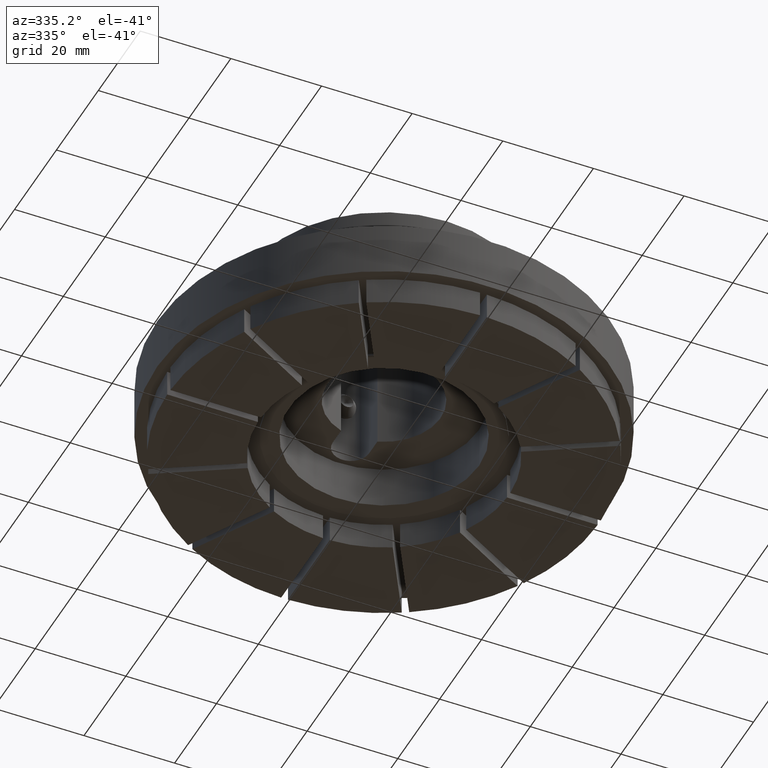
[diagram: clean part render]
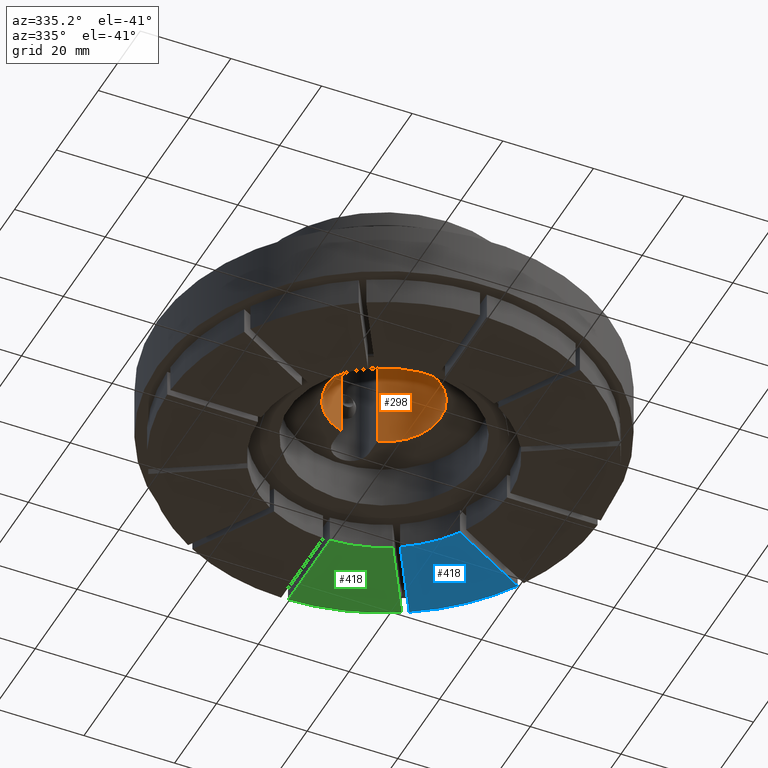
[diagram: same view with three faces highlighted in distinct colors, each labeled with its STEP entity id]
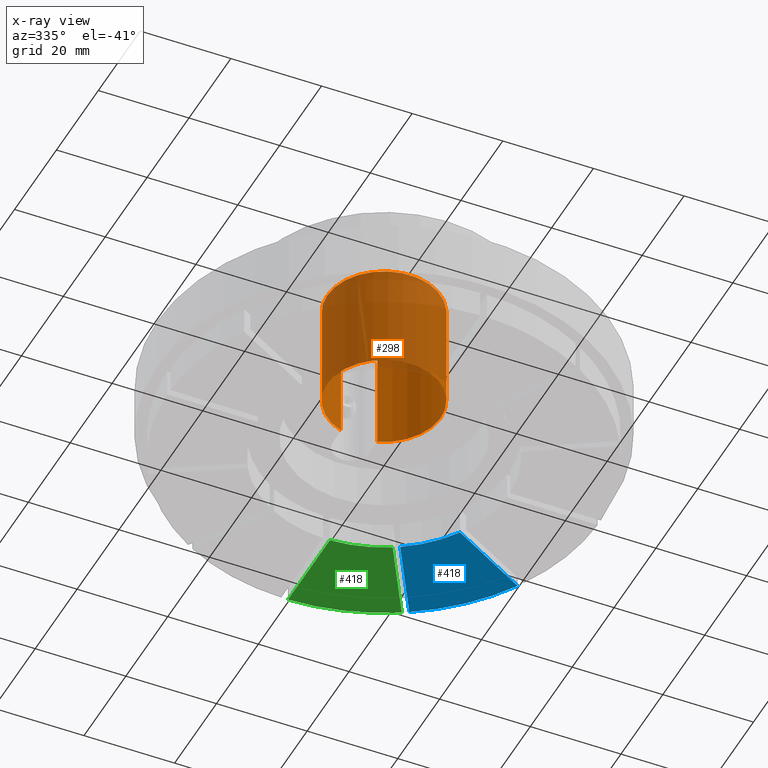
[diagram: x-ray of the same camera — body ghosted, the three highlighted faces saturated]
A machine part, auxiliary view with three faces highlighted in distinct colors.
The next image is the same camera in x-ray (body ghosted, the three faces saturated) — at least one of them is partly hidden behind the body in this view.
Their STEP definitions:

[orange] entity #298 — the highlighted cylindrical surface (partial cylindrical patch) has radius 12.5 mm, axis along (0, -0, 1).
#298 = ADVANCED_FACE( '', ( #425 ), #426, .F. );
#425 = FACE_OUTER_BOUND( '', #637, .T. );
#426 = CYLINDRICAL_SURFACE( '', #638, 12.5000000000000 );
#637 = EDGE_LOOP( '', ( #856, #857, #858, #859 ) );
#638 = AXIS2_PLACEMENT_3D( '', #860, #861, #862 );
#856 = ORIENTED_EDGE( '', *, *, #1515, .F. );
#857 = ORIENTED_EDGE( '', *, *, #1514, .T. );
#858 = ORIENTED_EDGE( '', *, *, #1516, .T. );
#859 = ORIENTED_EDGE( '', *, *, #1517, .F. );
#860 = CARTESIAN_POINT( '', ( 0.000000000000000, 0.000000000000000, 39.0000100000000 ) );
#861 = DIRECTION( '', ( 0.000000000000000, -0.000000000000000, 1.00000000000000 ) );
#862 = DIRECTION( '', ( -1.00000000000000, 0.000000000000000, 0.000000000000000 ) );
#1514 = EDGE_CURVE( '', #1721, #1725, #1727, .T. );
#1515 = EDGE_CURVE( '', #1721, #1728, #1729, .T. );
#1516 = EDGE_CURVE( '', #1725, #1730, #1731, .T. );
#1517 = EDGE_CURVE( '', #1728, #1730, #1732, .T. );
#1721 = VERTEX_POINT( '', #2070 );
#1725 = VERTEX_POINT( '', #2077 );
#1727 = CIRCLE( '', #2082, 12.5000000000000 );
#1728 = VERTEX_POINT( '', #2083 );
#1729 = LINE( '', #2084, #2085 );
#1730 = VERTEX_POINT( '', #2086 );
#1731 = LINE( '', #2087, #2088 );
#1732 = CIRCLE( '', #2089, 12.5000000000000 );
#2070 = CARTESIAN_POINT( '', ( -4.00000000000000, 11.8427192823270, 38.5000000000000 ) );
#2077 = CARTESIAN_POINT( '', ( 3.99999999999999, 11.8427192823270, 38.5000000000000 ) );
#2082 = AXIS2_PLACEMENT_3D( '', #2705, #2706, #2707 );
#2083 = CARTESIAN_POINT( '', ( -4.00000000000000, 11.8427192823270, 15.0000000000000 ) );
#2084 = CARTESIAN_POINT( '', ( -4.00000000000000, 11.8427192823270, 39.0000100000000 ) );
#2085 = VECTOR( '', #2708, 1000.00000000000 );
#2086 = CARTESIAN_POINT( '', ( 4.00000000000000, 11.8427192823270, 15.0000000000000 ) );
#2087 = CARTESIAN_POINT( '', ( 3.99999999999999, 11.8427192823270, 39.0000100000000 ) );
#2088 = VECTOR( '', #2709, 1000.00000000000 );
#2089 = AXIS2_PLACEMENT_3D( '', #2710, #2711, #2712 );
#2705 = CARTESIAN_POINT( '', ( 0.000000000000000, 0.000000000000000, 38.5000000000000 ) );
#2706 = DIRECTION( '', ( 0.000000000000000, 0.000000000000000, 1.00000000000000 ) );
#2707 = DIRECTION( '', ( 1.00000000000000, 0.000000000000000, -0.000000000000000 ) );
#2708 = DIRECTION( '', ( -0.000000000000000, -0.000000000000000, -1.00000000000000 ) );
#2709 = DIRECTION( '', ( -0.000000000000000, -0.000000000000000, -1.00000000000000 ) );
#2710 = CARTESIAN_POINT( '', ( 0.000000000000000, 0.000000000000000, 15.0000000000000 ) );
#2711 = DIRECTION( '', ( 0.000000000000000, 0.000000000000000, 1.00000000000000 ) );
#2712 = DIRECTION( '', ( 1.00000000000000, 0.000000000000000, -0.000000000000000 ) );

[blue] entity #418 — the highlighted planar face has unit normal (0, 0, 1).
#418 = ADVANCED_FACE( '', ( #630 ), #631, .F. );
#630 = FACE_OUTER_BOUND( '', #842, .T. );
#631 = PLANE( '', #843 );
#842 = EDGE_LOOP( '', ( #1502, #1503, #1504, #1505 ) );
#843 = AXIS2_PLACEMENT_3D( '', #1506, #1507, #1508 );
#1502 = ORIENTED_EDGE( '', *, *, #1704, .F. );
#1503 = ORIENTED_EDGE( '', *, *, #1715, .F. );
#1504 = ORIENTED_EDGE( '', *, *, #1713, .F. );
#1505 = ORIENTED_EDGE( '', *, *, #1711, .F. );
#1506 = CARTESIAN_POINT( '', ( -6.93889390390723E-015, -1.08420217248550E-016, 0.000000000000000 ) );
#1507 = DIRECTION( '', ( 0.000000000000000, -0.000000000000000, 1.00000000000000 ) );
#1508 = DIRECTION( '', ( 0.999875338490142, 0.0157894736842105, 0.000000000000000 ) );
#1704 = EDGE_CURVE( '', #2045, #2046, #2047, .T. );
#1711 = EDGE_CURVE( '', #2046, #2058, #2059, .T. );
#1713 = EDGE_CURVE( '', #2058, #2061, #2062, .T. );
#1715 = EDGE_CURVE( '', #2061, #2045, #2064, .T. );
#2045 = VERTEX_POINT( '', #2668 );
#2046 = VERTEX_POINT( '', #2669 );
#2047 = LINE( '', #2670, #2671 );
#2058 = VERTEX_POINT( '', #2686 );
#2059 = CIRCLE( '', #2687, 47.5000000000000 );
#2061 = VERTEX_POINT( '', #2690 );
#2062 = LINE( '', #2691, #2692 );
#2064 = CIRCLE( '', #2695, 27.5000000000000 );
#2668 = CARTESIAN_POINT( '', ( 27.4897708247995, 0.749999999999983, 0.000000000000000 ) );
#2669 = CARTESIAN_POINT( '', ( 47.4940785782817, 0.750000000000000, 0.000000000000000 ) );
#2670 = CARTESIAN_POINT( '', ( 27.4897708247996, 0.750000000000000, 0.000000000000000 ) );
#2671 = VECTOR( '', #3016, 1000.00000000000 );
#2686 = CARTESIAN_POINT( '', ( 41.5060785781263, 23.0975202363025, 0.000000000000000 ) );
#2687 = AXIS2_PLACEMENT_3D( '', #3027, #3028, #3029 );
#2690 = CARTESIAN_POINT( '', ( 24.1818398784887, 13.0953663595615, 0.000000000000000 ) );
#2691 = CARTESIAN_POINT( '', ( 41.5060785781263, 23.0975202363026, 0.000000000000000 ) );
#2692 = VECTOR( '', #3031, 1000.00000000000 );
#2695 = AXIS2_PLACEMENT_3D( '', #3033, #3034, #3035 );
#3016 = DIRECTION( '', ( 1.00000000000000, 0.000000000000000, 0.000000000000000 ) );
#3027 = CARTESIAN_POINT( '', ( -6.93889390390723E-015, -1.08420217248550E-016, 0.000000000000000 ) );
#3028 = DIRECTION( '', ( 0.000000000000000, 0.000000000000000, 1.00000000000000 ) );
#3029 = DIRECTION( '', ( 1.00000000000000, 0.000000000000000, 0.000000000000000 ) );
#3031 = DIRECTION( '', ( -0.866025403784439, -0.500000000000000, -0.000000000000000 ) );
#3033 = CARTESIAN_POINT( '', ( -6.93889390390723E-015, -1.08420217248550E-016, 0.000000000000000 ) );
#3034 = DIRECTION( '', ( 0.000000000000000, 0.000000000000000, -1.00000000000000 ) );
#3035 = DIRECTION( '', ( 1.00000000000000, 3.46944695195361E-018, 0.000000000000000 ) );

[green] entity #418 — the highlighted planar face has unit normal (0, 0, 1).
#418 = ADVANCED_FACE( '', ( #630 ), #631, .F. );
#630 = FACE_OUTER_BOUND( '', #842, .T. );
#631 = PLANE( '', #843 );
#842 = EDGE_LOOP( '', ( #1502, #1503, #1504, #1505 ) );
#843 = AXIS2_PLACEMENT_3D( '', #1506, #1507, #1508 );
#1502 = ORIENTED_EDGE( '', *, *, #1704, .F. );
#1503 = ORIENTED_EDGE( '', *, *, #1715, .F. );
#1504 = ORIENTED_EDGE( '', *, *, #1713, .F. );
#1505 = ORIENTED_EDGE( '', *, *, #1711, .F. );
#1506 = CARTESIAN_POINT( '', ( -6.93889390390723E-015, -1.08420217248550E-016, 0.000000000000000 ) );
#1507 = DIRECTION( '', ( 0.000000000000000, -0.000000000000000, 1.00000000000000 ) );
#1508 = DIRECTION( '', ( 0.999875338490142, 0.0157894736842105, 0.000000000000000 ) );
#1704 = EDGE_CURVE( '', #2045, #2046, #2047, .T. );
#1711 = EDGE_CURVE( '', #2046, #2058, #2059, .T. );
#1713 = EDGE_CURVE( '', #2058, #2061, #2062, .T. );
#1715 = EDGE_CURVE( '', #2061, #2045, #2064, .T. );
#2045 = VERTEX_POINT( '', #2668 );
#2046 = VERTEX_POINT( '', #2669 );
#2047 = LINE( '', #2670, #2671 );
#2058 = VERTEX_POINT( '', #2686 );
#2059 = CIRCLE( '', #2687, 47.5000000000000 );
#2061 = VERTEX_POINT( '', #2690 );
#2062 = LINE( '', #2691, #2692 );
#2064 = CIRCLE( '', #2695, 27.5000000000000 );
#2668 = CARTESIAN_POINT( '', ( 27.4897708247995, 0.749999999999983, 0.000000000000000 ) );
#2669 = CARTESIAN_POINT( '', ( 47.4940785782817, 0.750000000000000, 0.000000000000000 ) );
#2670 = CARTESIAN_POINT( '', ( 27.4897708247996, 0.750000000000000, 0.000000000000000 ) );
#2671 = VECTOR( '', #3016, 1000.00000000000 );
#2686 = CARTESIAN_POINT( '', ( 41.5060785781263, 23.0975202363025, 0.000000000000000 ) );
#2687 = AXIS2_PLACEMENT_3D( '', #3027, #3028, #3029 );
#2690 = CARTESIAN_POINT( '', ( 24.1818398784887, 13.0953663595615, 0.000000000000000 ) );
#2691 = CARTESIAN_POINT( '', ( 41.5060785781263, 23.0975202363026, 0.000000000000000 ) );
#2692 = VECTOR( '', #3031, 1000.00000000000 );
#2695 = AXIS2_PLACEMENT_3D( '', #3033, #3034, #3035 );
#3016 = DIRECTION( '', ( 1.00000000000000, 0.000000000000000, 0.000000000000000 ) );
#3027 = CARTESIAN_POINT( '', ( -6.93889390390723E-015, -1.08420217248550E-016, 0.000000000000000 ) );
#3028 = DIRECTION( '', ( 0.000000000000000, 0.000000000000000, 1.00000000000000 ) );
#3029 = DIRECTION( '', ( 1.00000000000000, 0.000000000000000, 0.000000000000000 ) );
#3031 = DIRECTION( '', ( -0.866025403784439, -0.500000000000000, -0.000000000000000 ) );
#3033 = CARTESIAN_POINT( '', ( -6.93889390390723E-015, -1.08420217248550E-016, 0.000000000000000 ) );
#3034 = DIRECTION( '', ( 0.000000000000000, 0.000000000000000, -1.00000000000000 ) );
#3035 = DIRECTION( '', ( 1.00000000000000, 3.46944695195361E-018, 0.000000000000000 ) );